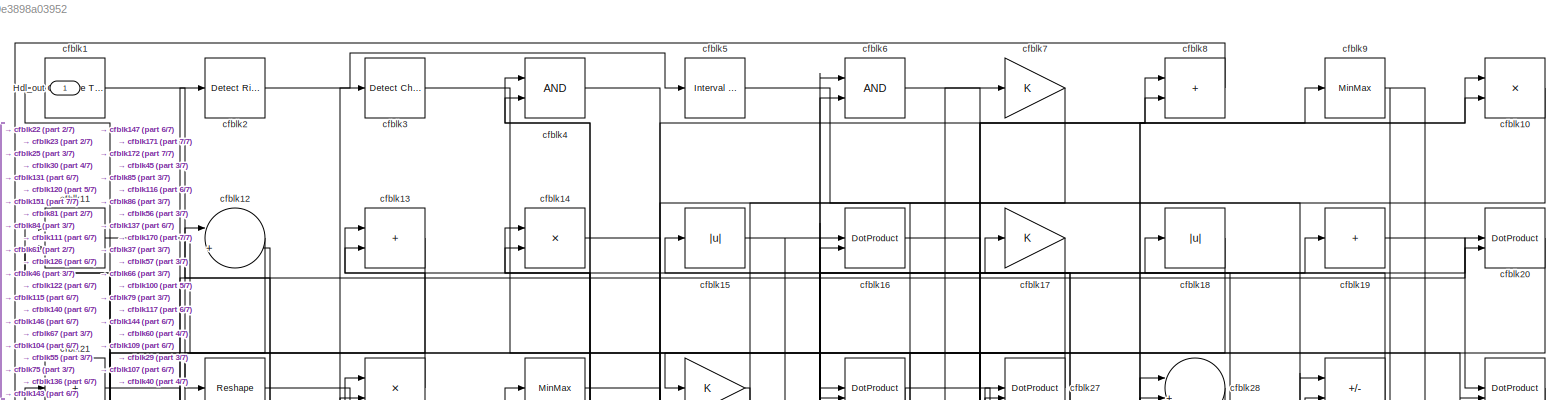
[diagram: root canvas - part 1/7, full width, top band]
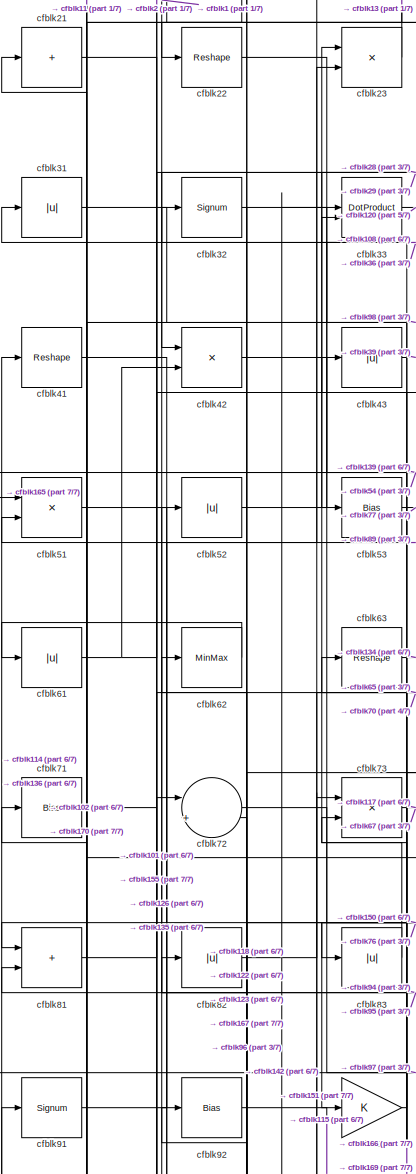
[diagram: root canvas - part 2/7, middle left region]
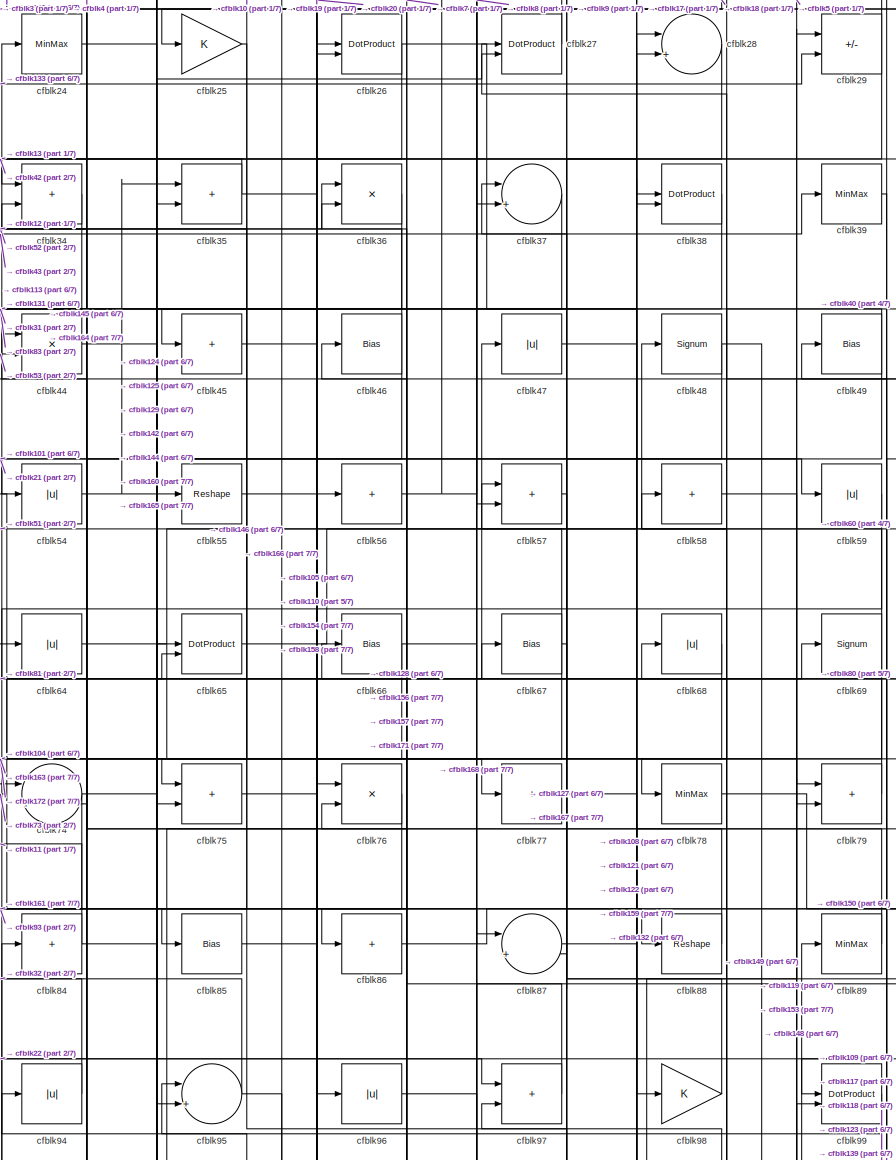
[diagram: root canvas - part 3/7, central region]
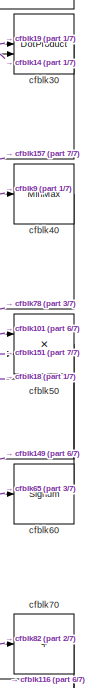
[diagram: root canvas - part 4/7, top right region]
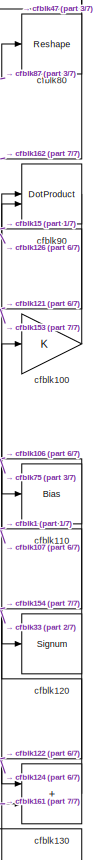
[diagram: root canvas - part 5/7, middle right region]
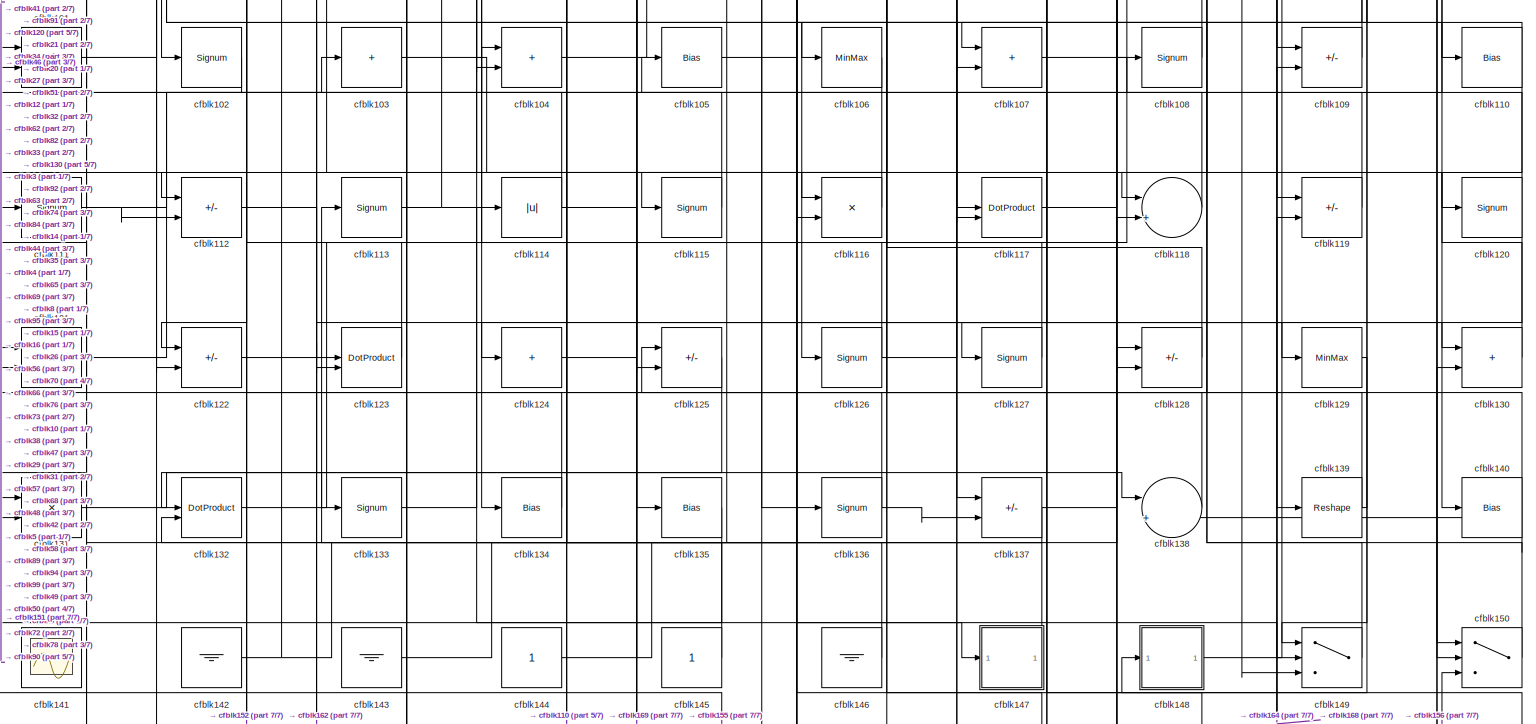
[diagram: root canvas - part 6/7, full width, bottom band]
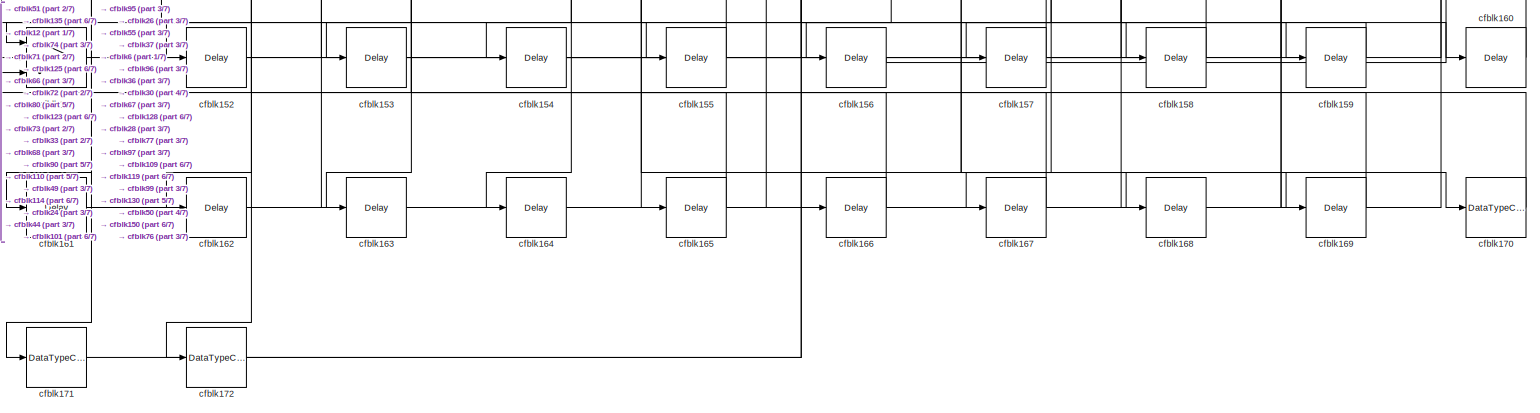
[diagram: root canvas - part 7/7, full width, bottom band]
MODEL slx_9e3898a03952
KIND model
CONFIG AbsTol = auto
CONFIG EnableMultiTasking = off
CONFIG FixedStep = auto
CONFIG MaxStep = auto
CONFIG MinStep = auto
CONFIG RelTol = 1e-3
CONFIG SampleTimeConstraint = Unconstrained
CONFIG SolverName = VariableStepAuto
CONFIG StartTime = 0.0
CONFIG StopTime = 10.0
BLOCK [Outport] Hdl_out
  OutDataTypeStr = uint8
BLOCK [Reference] cfblk1  REF=hdlsllib/Logic and Bit
Operations/Compare
To Zero
  SourceBlock = hdlsllib/Logic and Bit\nOperations/Compare\nTo Zero
  SourceType = Compare To Zero
BLOCK [Product] cfblk10
  Inputs = */
  OutDataTypeStr = uint8
  RndMeth = Zero
  SaturateOnIntegerOverflow = on
BLOCK [Gain] cfblk100
  OutDataTypeStr = uint8
BLOCK [Sum] cfblk101
  IconShape = rectangular
  Inputs = +-
  OutDataTypeStr = uint8
BLOCK [Signum] cfblk102
BLOCK [Sum] cfblk103
  IconShape = rectangular
  Inputs = +
  OutDataTypeStr = uint8
BLOCK [Sum] cfblk104
  IconShape = rectangular
  OutDataTypeStr = uint8
BLOCK [Bias] cfblk105
  Bias = 0.0
  SaturateOnIntegerOverflow = off
BLOCK [MinMax] cfblk106
  OutDataTypeStr = uint8
BLOCK [Sum] cfblk107
  IconShape = rectangular
  OutDataTypeStr = uint8
BLOCK [Signum] cfblk108
BLOCK [Sum] cfblk109
  IconShape = rectangular
  Inputs = +-
  OutDataTypeStr = uint8
BLOCK [Sum] cfblk11
  IconShape = rectangular
  OutDataTypeStr = uint8
BLOCK [Bias] cfblk110
  Bias = 0.0
  SaturateOnIntegerOverflow = off
BLOCK [Signum] cfblk111
BLOCK [Sum] cfblk112
  IconShape = rectangular
  Inputs = +-
  OutDataTypeStr = uint8
BLOCK [Signum] cfblk113
BLOCK [Abs] cfblk114
  OutDataTypeStr = uint8
  SaturateOnIntegerOverflow = off
BLOCK [Signum] cfblk115
BLOCK [Product] cfblk116
  Inputs = */
  OutDataTypeStr = uint8
  RndMeth = Zero
  SaturateOnIntegerOverflow = on
BLOCK [DotProduct] cfblk117
  OutDataTypeStr = uint8
BLOCK [Sum] cfblk118
  Inputs = |++
  OutDataTypeStr = uint8
BLOCK [Sum] cfblk119
  IconShape = rectangular
  Inputs = +-
  OutDataTypeStr = uint8
BLOCK [Sum] cfblk12
  Inputs = |++
  OutDataTypeStr = uint8
BLOCK [Signum] cfblk120
BLOCK [Product] cfblk121
  Inputs = */
  OutDataTypeStr = uint8
  RndMeth = Zero
  SaturateOnIntegerOverflow = on
BLOCK [Sum] cfblk122
  IconShape = rectangular
  Inputs = +-
  OutDataTypeStr = uint8
BLOCK [DotProduct] cfblk123
  OutDataTypeStr = uint8
BLOCK [Sum] cfblk124
  IconShape = rectangular
  Inputs = +
  OutDataTypeStr = uint8
BLOCK [Sum] cfblk125
  IconShape = rectangular
  Inputs = +-
  OutDataTypeStr = uint8
BLOCK [Signum] cfblk126
BLOCK [Signum] cfblk127
BLOCK [Sum] cfblk128
  IconShape = rectangular
  Inputs = +-
  OutDataTypeStr = uint8
BLOCK [MinMax] cfblk129
  OutDataTypeStr = uint8
BLOCK [Sum] cfblk13
  IconShape = rectangular
  OutDataTypeStr = uint8
BLOCK [Sum] cfblk130
  IconShape = rectangular
  OutDataTypeStr = uint8
BLOCK [Product] cfblk131
  Inputs = */
  OutDataTypeStr = uint8
  RndMeth = Zero
  SaturateOnIntegerOverflow = on
BLOCK [DotProduct] cfblk132
  OutDataTypeStr = uint8
BLOCK [Signum] cfblk133
BLOCK [Bias] cfblk134
  Bias = 0.0
  SaturateOnIntegerOverflow = off
BLOCK [Bias] cfblk135
  Bias = 0.0
  SaturateOnIntegerOverflow = off
BLOCK [Signum] cfblk136
BLOCK [Sum] cfblk137
  IconShape = rectangular
  Inputs = +-
  OutDataTypeStr = uint8
BLOCK [Sum] cfblk138
  Inputs = |++
  OutDataTypeStr = uint8
BLOCK [Reshape] cfblk139
BLOCK [Product] cfblk14
  Inputs = */
  OutDataTypeStr = uint8
  RndMeth = Zero
  SaturateOnIntegerOverflow = on
BLOCK [Bias] cfblk140
  Bias = 0.0
  SaturateOnIntegerOverflow = off
BLOCK [Scope] cfblk141
  Floating = on
  NumInputPorts = 1
  ScopeSpecificationString = Simulink.scopes.TimeScopeBlockCfg('CurrentConfiguration', extmgr.ConfigurationSet(extmgr.Configuration('Core','General UI',true,'FigureColor',[0.156862745098039 0.156862745098039 0.156862745098039]),extmgr.Configuration('Core','Source UI',true),extmgr.Configuration('Sources','WiredSimulink',true,'DataLoggingVariableName','ScopeData1','DataLoggingSaveFormat','StructureWithTime','DataLoggingLimitDat...<+2713ch>
BLOCK [Ground] cfblk142
BLOCK [Ground] cfblk143
BLOCK [Constant] cfblk144
  OutDataTypeStr = uint8
  SampleTime = -1
BLOCK [Constant] cfblk145
  OutDataTypeStr = uint8
  SampleTime = -1
BLOCK [Ground] cfblk146
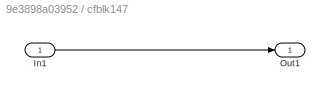
BLOCK [SubSystem] cfblk147
  LibrarySourceBlock = hdlsllib/Ports &\nSubsystems/Subsystem
BLOCK [Inport] cfblk147/In1
BLOCK [Outport] cfblk147/Out1
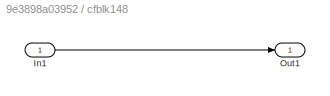
BLOCK [SubSystem] cfblk148
  LibrarySourceBlock = hdlsllib/Ports &\nSubsystems/Subsystem
BLOCK [Inport] cfblk148/In1
BLOCK [Outport] cfblk148/Out1
BLOCK [Switch] cfblk149
  InputSameDT = off
  OutDataTypeStr = uint8
  SaturateOnIntegerOverflow = off
BLOCK [Abs] cfblk15
  OutDataTypeStr = uint8
  SaturateOnIntegerOverflow = off
BLOCK [Switch] cfblk150
  InputSameDT = off
  OutDataTypeStr = uint8
  SaturateOnIntegerOverflow = off
BLOCK [Switch] cfblk151
  InputSameDT = off
  OutDataTypeStr = uint8
  SaturateOnIntegerOverflow = off
BLOCK [Delay] cfblk152
  InputPortMap = u0
  SampleTime = 1
BLOCK [Delay] cfblk153
  InputPortMap = u0
  SampleTime = 1
BLOCK [Delay] cfblk154
  InputPortMap = u0
  SampleTime = 1
BLOCK [Delay] cfblk155
  InputPortMap = u0
  SampleTime = 1
BLOCK [Delay] cfblk156
  InputPortMap = u0
  SampleTime = 1
BLOCK [Delay] cfblk157
  InputPortMap = u0
  SampleTime = 1
BLOCK [Delay] cfblk158
  InputPortMap = u0
  SampleTime = 1
BLOCK [Delay] cfblk159
  InputPortMap = u0
  SampleTime = 1
BLOCK [DotProduct] cfblk16
  OutDataTypeStr = uint8
BLOCK [Delay] cfblk160
  InputPortMap = u0
  SampleTime = 1
BLOCK [Delay] cfblk161
  InputPortMap = u0
  SampleTime = 1
BLOCK [Delay] cfblk162
  InputPortMap = u0
  SampleTime = 1
BLOCK [Delay] cfblk163
  InputPortMap = u0
  SampleTime = 1
BLOCK [Delay] cfblk164
  InputPortMap = u0
  SampleTime = 1
BLOCK [Delay] cfblk165
  InputPortMap = u0
  SampleTime = 1
BLOCK [Delay] cfblk166
  InputPortMap = u0
  SampleTime = 1
BLOCK [Delay] cfblk167
  InputPortMap = u0
  SampleTime = 1
BLOCK [Delay] cfblk168
  InputPortMap = u0
  SampleTime = 1
BLOCK [Delay] cfblk169
  InputPortMap = u0
  SampleTime = 1
BLOCK [Gain] cfblk17
  OutDataTypeStr = uint8
BLOCK [DataTypeConversion] cfblk170
  OutDataTypeStr = uint8
  RndMeth = Floor
  SaturateOnIntegerOverflow = off
BLOCK [DataTypeConversion] cfblk171
  OutDataTypeStr = uint8
  RndMeth = Floor
  SaturateOnIntegerOverflow = off
BLOCK [DataTypeConversion] cfblk172
  OutDataTypeStr = uint8
  RndMeth = Floor
  SaturateOnIntegerOverflow = off
BLOCK [Abs] cfblk18
  OutDataTypeStr = uint8
  SaturateOnIntegerOverflow = off
BLOCK [Sum] cfblk19
  IconShape = rectangular
  Inputs = +
  OutDataTypeStr = uint8
BLOCK [Reference] cfblk2  REF=hdlsllib/Logic and Bit
Operations/Detect Rise
Nonnegative
  SourceBlock = hdlsllib/Logic and Bit\nOperations/Detect Rise\nNonnegative
  SourceType = Detect Rise Nonnegative
BLOCK [DotProduct] cfblk20
  OutDataTypeStr = uint8
BLOCK [Sum] cfblk21
  IconShape = rectangular
  Inputs = +
  OutDataTypeStr = uint8
BLOCK [Reshape] cfblk22
BLOCK [Product] cfblk23
  Inputs = */
  OutDataTypeStr = uint8
  RndMeth = Zero
  SaturateOnIntegerOverflow = on
BLOCK [MinMax] cfblk24
  OutDataTypeStr = uint8
BLOCK [Gain] cfblk25
  OutDataTypeStr = uint8
BLOCK [DotProduct] cfblk26
  OutDataTypeStr = uint8
BLOCK [DotProduct] cfblk27
  OutDataTypeStr = uint8
BLOCK [Sum] cfblk28
  Inputs = |++
  OutDataTypeStr = uint8
BLOCK [Sum] cfblk29
  IconShape = rectangular
  Inputs = +-
  OutDataTypeStr = uint8
BLOCK [Reference] cfblk3  REF=simulink/Logic and Bit
Operations/Detect
Change
  LibrarySourceBlock = hdlsllib/Logic and Bit\nOperations/Detect\nChange
  SourceBlock = simulink/Logic and Bit\nOperations/Detect\nChange
  SourceType = Detect Change
BLOCK [DotProduct] cfblk30
  OutDataTypeStr = uint8
BLOCK [Abs] cfblk31
  OutDataTypeStr = uint8
  SaturateOnIntegerOverflow = off
BLOCK [Signum] cfblk32
BLOCK [DotProduct] cfblk33
  OutDataTypeStr = uint8
BLOCK [Sum] cfblk34
  IconShape = rectangular
  OutDataTypeStr = uint8
BLOCK [Sum] cfblk35
  IconShape = rectangular
  OutDataTypeStr = uint8
BLOCK [Product] cfblk36
  Inputs = */
  OutDataTypeStr = uint8
  RndMeth = Zero
  SaturateOnIntegerOverflow = on
BLOCK [Sum] cfblk37
  Inputs = |++
  OutDataTypeStr = uint8
BLOCK [DotProduct] cfblk38
  OutDataTypeStr = uint8
BLOCK [MinMax] cfblk39
  OutDataTypeStr = uint8
BLOCK [Logic] cfblk4
  AllPortsSameDT = off
  OutDataTypeStr = boolean
BLOCK [MinMax] cfblk40
  OutDataTypeStr = uint8
BLOCK [Reshape] cfblk41
BLOCK [Product] cfblk42
  Inputs = */
  OutDataTypeStr = uint8
  RndMeth = Zero
  SaturateOnIntegerOverflow = on
BLOCK [Abs] cfblk43
  OutDataTypeStr = uint8
  SaturateOnIntegerOverflow = off
BLOCK [Product] cfblk44
  Inputs = */
  OutDataTypeStr = uint8
  RndMeth = Zero
  SaturateOnIntegerOverflow = on
BLOCK [Sum] cfblk45
  IconShape = rectangular
  Inputs = +
  OutDataTypeStr = uint8
BLOCK [Bias] cfblk46
  Bias = 0.0
  SaturateOnIntegerOverflow = off
BLOCK [Abs] cfblk47
  OutDataTypeStr = uint8
  SaturateOnIntegerOverflow = off
BLOCK [Signum] cfblk48
BLOCK [Bias] cfblk49
  Bias = 0.0
  SaturateOnIntegerOverflow = off
BLOCK [Reference] cfblk5  REF=hdlsllib/Logic and Bit
Operations/Interval Test
  SourceBlock = hdlsllib/Logic and Bit\nOperations/Interval Test
  SourceType = Interval Test
BLOCK [Product] cfblk50
  Inputs = */
  OutDataTypeStr = uint8
  RndMeth = Zero
  SaturateOnIntegerOverflow = on
BLOCK [Product] cfblk51
  Inputs = */
  OutDataTypeStr = uint8
  RndMeth = Zero
  SaturateOnIntegerOverflow = on
BLOCK [Abs] cfblk52
  OutDataTypeStr = uint8
  SaturateOnIntegerOverflow = off
BLOCK [Bias] cfblk53
  Bias = 0.0
  SaturateOnIntegerOverflow = off
BLOCK [Abs] cfblk54
  OutDataTypeStr = uint8
  SaturateOnIntegerOverflow = off
BLOCK [Reshape] cfblk55
BLOCK [Sum] cfblk56
  IconShape = rectangular
  Inputs = +
  OutDataTypeStr = uint8
BLOCK [Sum] cfblk57
  IconShape = rectangular
  OutDataTypeStr = uint8
BLOCK [Sum] cfblk58
  IconShape = rectangular
  Inputs = +
  OutDataTypeStr = uint8
BLOCK [Abs] cfblk59
  OutDataTypeStr = uint8
  SaturateOnIntegerOverflow = off
BLOCK [Logic] cfblk6
  AllPortsSameDT = off
  OutDataTypeStr = boolean
BLOCK [Signum] cfblk60
BLOCK [Abs] cfblk61
  OutDataTypeStr = uint8
  SaturateOnIntegerOverflow = off
BLOCK [MinMax] cfblk62
  OutDataTypeStr = uint8
BLOCK [Reshape] cfblk63
BLOCK [Abs] cfblk64
  OutDataTypeStr = uint8
  SaturateOnIntegerOverflow = off
BLOCK [DotProduct] cfblk65
  OutDataTypeStr = uint8
BLOCK [Bias] cfblk66
  Bias = 0.0
  SaturateOnIntegerOverflow = off
BLOCK [Bias] cfblk67
  Bias = 0.0
  SaturateOnIntegerOverflow = off
BLOCK [Abs] cfblk68
  OutDataTypeStr = uint8
  SaturateOnIntegerOverflow = off
BLOCK [Signum] cfblk69
BLOCK [Gain] cfblk7
  OutDataTypeStr = uint8
BLOCK [Sum] cfblk70
  IconShape = rectangular
  Inputs = +
  OutDataTypeStr = uint8
BLOCK [Bias] cfblk71
  Bias = 0.0
  SaturateOnIntegerOverflow = off
BLOCK [Sum] cfblk72
  Inputs = |++
  OutDataTypeStr = uint8
BLOCK [Product] cfblk73
  Inputs = */
  OutDataTypeStr = uint8
  RndMeth = Zero
  SaturateOnIntegerOverflow = on
BLOCK [Sum] cfblk74
  Inputs = |++
  OutDataTypeStr = uint8
BLOCK [Sum] cfblk75
  IconShape = rectangular
  OutDataTypeStr = uint8
BLOCK [Product] cfblk76
  Inputs = */
  OutDataTypeStr = uint8
  RndMeth = Zero
  SaturateOnIntegerOverflow = on
BLOCK [Sum] cfblk77
  IconShape = rectangular
  Inputs = +
  OutDataTypeStr = uint8
BLOCK [MinMax] cfblk78
  OutDataTypeStr = uint8
BLOCK [Sum] cfblk79
  IconShape = rectangular
  OutDataTypeStr = uint8
BLOCK [Sum] cfblk8
  IconShape = rectangular
  OutDataTypeStr = uint8
BLOCK [Reshape] cfblk80
BLOCK [Sum] cfblk81
  IconShape = rectangular
  OutDataTypeStr = uint8
BLOCK [Abs] cfblk82
  OutDataTypeStr = uint8
  SaturateOnIntegerOverflow = off
BLOCK [Abs] cfblk83
  OutDataTypeStr = uint8
  SaturateOnIntegerOverflow = off
BLOCK [Sum] cfblk84
  IconShape = rectangular
  Inputs = +
  OutDataTypeStr = uint8
BLOCK [Bias] cfblk85
  Bias = 0.0
  SaturateOnIntegerOverflow = off
BLOCK [Sum] cfblk86
  IconShape = rectangular
  Inputs = +
  OutDataTypeStr = uint8
BLOCK [Sum] cfblk87
  Inputs = |++
  OutDataTypeStr = uint8
BLOCK [Reshape] cfblk88
BLOCK [MinMax] cfblk89
  OutDataTypeStr = uint8
BLOCK [MinMax] cfblk9
  OutDataTypeStr = uint8
BLOCK [DotProduct] cfblk90
  OutDataTypeStr = uint8
BLOCK [Signum] cfblk91
BLOCK [Bias] cfblk92
  Bias = 0.0
  SaturateOnIntegerOverflow = off
BLOCK [Gain] cfblk93
  OutDataTypeStr = uint8
BLOCK [Abs] cfblk94
  OutDataTypeStr = uint8
  SaturateOnIntegerOverflow = off
BLOCK [Sum] cfblk95
  Inputs = |++
  OutDataTypeStr = uint8
BLOCK [Abs] cfblk96
  OutDataTypeStr = uint8
  SaturateOnIntegerOverflow = off
BLOCK [Sum] cfblk97
  IconShape = rectangular
  OutDataTypeStr = uint8
BLOCK [Gain] cfblk98
  OutDataTypeStr = uint8
BLOCK [DotProduct] cfblk99
  OutDataTypeStr = uint8
LINE cfblk100:1 -> cfblk15:1
NET cfblk101:1 -> cfblk50:1, cfblk72:1
LINE cfblk102:1 -> cfblk21:1
LINE cfblk103:1 -> cfblk140:1
NET cfblk104:1 -> cfblk16:2, cfblk8:2
LINE cfblk105:1 -> cfblk26:1
LINE cfblk106:1 -> cfblk121:1
LINE cfblk107:1 -> cfblk90:1
LINE cfblk108:1 -> cfblk31:1
LINE cfblk109:1 -> cfblk94:1
LINE cfblk10:1 -> cfblk75:1
NET cfblk110:1 -> cfblk106:1, cfblk154:1
NET cfblk111:1 -> cfblk103:1, cfblk112:2, cfblk20:2
LINE cfblk112:1 -> cfblk138:1
NET cfblk113:1 -> cfblk149:2, cfblk74:1, cfblk84:1
NET cfblk114:1 -> cfblk169:1, cfblk91:1
LINE cfblk115:1 -> cfblk4:2
LINE cfblk116:1 -> cfblk112:1
LINE cfblk117:1 -> cfblk10:1
LINE cfblk118:1 -> cfblk92:1
LINE cfblk119:1 -> cfblk105:1
LINE cfblk11:1 -> cfblk37:2
NET cfblk120:1 -> cfblk124:1, cfblk1:1
LINE cfblk121:1 -> cfblk38:1
NET cfblk122:1 -> cfblk130:1, cfblk3:1
LINE cfblk123:1 -> cfblk62:1
LINE cfblk124:1 -> cfblk69:1
LINE cfblk125:1 -> cfblk152:1
NET cfblk126:1 -> cfblk12:1, cfblk63:1, cfblk90:2
LINE cfblk127:1 -> cfblk114:1
LINE cfblk128:1 -> cfblk76:2
LINE cfblk129:1 -> cfblk148:1
LINE cfblk12:1 -> cfblk151:1
LINE cfblk130:1 -> cfblk100:1
LINE cfblk131:1 -> cfblk133:1
LINE cfblk132:1 -> cfblk29:1
LINE cfblk133:1 -> cfblk29:2
LINE cfblk134:1 -> cfblk82:1
LINE cfblk135:1 -> cfblk151:3
NET cfblk136:1 -> cfblk137:2, cfblk41:1
NET cfblk137:1 -> cfblk118:2, cfblk132:2
LINE cfblk138:1 -> cfblk125:1
NET cfblk139:1 -> cfblk49:1, cfblk66:1, cfblk68:1
LINE cfblk13:1 -> cfblk81:1
NET cfblk140:1 -> cfblk138:2, cfblk14:1
NET cfblk142:1 -> cfblk33:1, cfblk65:1
LINE cfblk143:1 -> cfblk16:1
NET cfblk144:1 -> cfblk10:2, cfblk35:2, cfblk56:1
LINE cfblk145:1 -> cfblk44:1
NET cfblk146:1 -> cfblk111:1, cfblk14:2, cfblk95:1
LINE cfblk147/In1:1 -> cfblk147/Out1:1
NET cfblk147:1 -> cfblk104:1, cfblk113:1
LINE cfblk148/In1:1 -> cfblk148/Out1:1
LINE cfblk148:1 -> cfblk89:1
NET cfblk149:1 -> cfblk27:1, cfblk57:1
LINE cfblk14:1 -> cfblk30:2
LINE cfblk150:1 -> cfblk58:1
NET cfblk151:1 -> cfblk50:2, cfblk73:1
LINE cfblk152:1 -> cfblk128:1
LINE cfblk153:1 -> cfblk99:2
LINE cfblk154:1 -> cfblk26:2
LINE cfblk155:1 -> cfblk101:1
LINE cfblk156:1 -> cfblk150:3
LINE cfblk157:1 -> cfblk36:2
LINE cfblk158:1 -> cfblk97:2
LINE cfblk159:1 -> cfblk151:2
NET cfblk15:1 -> cfblk136:1, cfblk147:1
LINE cfblk160:1 -> cfblk76:1
LINE cfblk161:1 -> cfblk130:2
LINE cfblk162:1 -> cfblk123:1
LINE cfblk163:1 -> cfblk28:1
LINE cfblk164:1 -> cfblk109:2
LINE cfblk165:1 -> cfblk51:1
LINE cfblk166:1 -> cfblk73:2
LINE cfblk167:1 -> cfblk72:2
LINE cfblk168:1 -> cfblk119:2
LINE cfblk169:1 -> cfblk33:2
LINE cfblk16:1 -> cfblk137:1
LINE cfblk170:1 -> cfblk71:1
LINE cfblk171:1 -> cfblk6:1
LINE cfblk172:1 -> cfblk6:2
LINE cfblk17:1 -> cfblk57:2
LINE cfblk18:1 -> cfblk25:1
LINE cfblk19:1 -> cfblk30:1
LINE cfblk1:1 -> cfblk22:1
LINE cfblk20:1 -> cfblk116:1
LINE cfblk21:1 -> cfblk54:1
LINE cfblk22:1 -> cfblk97:1
LINE cfblk23:1 -> cfblk13:1
LINE cfblk24:1 -> cfblk165:1
LINE cfblk25:1 -> cfblk85:1
NET cfblk26:1 -> cfblk122:2, cfblk128:2
LINE cfblk27:1 -> cfblk102:1
LINE cfblk28:1 -> cfblk42:1
NET cfblk29:1 -> cfblk13:2, cfblk44:2, cfblk53:1
LINE cfblk2:1 -> cfblk5:1
LINE cfblk30:1 -> cfblk157:1
LINE cfblk31:1 -> cfblk98:1
NET cfblk32:1 -> cfblk122:1, cfblk96:1
LINE cfblk33:1 -> cfblk120:1
LINE cfblk34:1 -> cfblk131:1
NET cfblk35:1 -> cfblk34:1, cfblk38:2
LINE cfblk36:1 -> cfblk83:1
NET cfblk37:1 -> cfblk156:1, cfblk171:1
LINE cfblk38:1 -> cfblk125:2
LINE cfblk39:1 -> cfblk99:1
LINE cfblk3:1 -> cfblk55:1
LINE cfblk40:1 -> cfblk78:1
LINE cfblk41:1 -> cfblk135:1
LINE cfblk42:1 -> cfblk139:1
LINE cfblk43:1 -> cfblk39:1
LINE cfblk44:1 -> cfblk160:1
LINE cfblk45:1 -> cfblk20:1
NET cfblk46:1 -> cfblk101:2, cfblk12:2
LINE cfblk47:1 -> cfblk108:1
NET cfblk48:1 -> cfblk127:1, cfblk149:3
NET cfblk49:1 -> cfblk164:1, cfblk45:1
LINE cfblk4:1 -> cfblk107:2
LINE cfblk50:1 -> cfblk149:1
LINE cfblk51:1 -> cfblk126:1
LINE cfblk52:1 -> cfblk36:1
LINE cfblk53:1 -> cfblk77:1
NET cfblk54:1 -> cfblk35:1, cfblk59:1
LINE cfblk55:1 -> cfblk158:1
NET cfblk56:1 -> cfblk7:1, cfblk9:1
LINE cfblk57:1 -> cfblk87:2
LINE cfblk58:1 -> cfblk119:1
LINE cfblk59:1 -> cfblk64:1
NET cfblk5:1 -> cfblk109:1, cfblk79:1
LINE cfblk60:1 -> cfblk18:1
NET cfblk61:1 -> cfblk2:1, cfblk42:2
LINE cfblk62:1 -> cfblk61:1
LINE cfblk63:1 -> cfblk134:1
NET cfblk64:1 -> cfblk28:2, cfblk79:2, cfblk95:2
LINE cfblk65:1 -> cfblk60:1
NET cfblk66:1 -> cfblk172:1, cfblk87:1, cfblk8:1
NET cfblk67:1 -> cfblk167:1, cfblk4:1, cfblk74:2
LINE cfblk68:1 -> cfblk163:1
NET cfblk69:1 -> cfblk104:2, cfblk48:1
LINE cfblk6:1 -> cfblk170:1
LINE cfblk70:1 -> cfblk116:2
LINE cfblk71:1 -> cfblk155:1
LINE cfblk72:1 -> cfblk150:2
NET cfblk73:1 -> cfblk117:1, cfblk67:1
NET cfblk74:1 -> cfblk132:1, cfblk161:1, cfblk27:2
LINE cfblk75:1 -> cfblk110:1
LINE cfblk76:1 -> cfblk93:1
LINE cfblk77:1 -> cfblk159:1
LINE cfblk78:1 -> cfblk150:1
NET cfblk79:1 -> cfblk17:1, cfblk24:1
NET cfblk7:1 -> cfblk75:2, cfblk86:1
NET cfblk80:1 -> cfblk162:1, cfblk47:1
NET cfblk81:1 -> cfblk11:1, cfblk65:2
LINE cfblk82:1 -> cfblk70:1
LINE cfblk83:1 -> cfblk23:1
NET cfblk84:1 -> cfblk11:2, cfblk129:1
LINE cfblk85:1 -> cfblk19:1
LINE cfblk86:1 -> cfblk88:1
LINE cfblk87:1 -> cfblk80:1
LINE cfblk88:1 -> cfblk34:2
LINE cfblk89:1 -> cfblk51:2
LINE cfblk8:1 -> cfblk131:2
NET cfblk90:1 -> cfblk121:2, cfblk153:1
LINE cfblk91:1 -> cfblk23:2
LINE cfblk92:1 -> cfblk115:1
LINE cfblk93:1 -> cfblk43:1
NET cfblk94:1 -> cfblk32:1, cfblk52:1
NET cfblk95:1 -> cfblk166:1, cfblk81:2
LINE cfblk96:1 -> cfblk168:1
LINE cfblk97:1 -> cfblk46:1
LINE cfblk98:1 -> cfblk37:1
NET cfblk99:1 -> cfblk117:2, cfblk118:1, cfblk123:2
NET cfblk9:1 -> cfblk107:1, cfblk40:1
note: NET lines group one-source signal fan-out (src -> all destinations, sorted); 1:1 wires keep LINE
